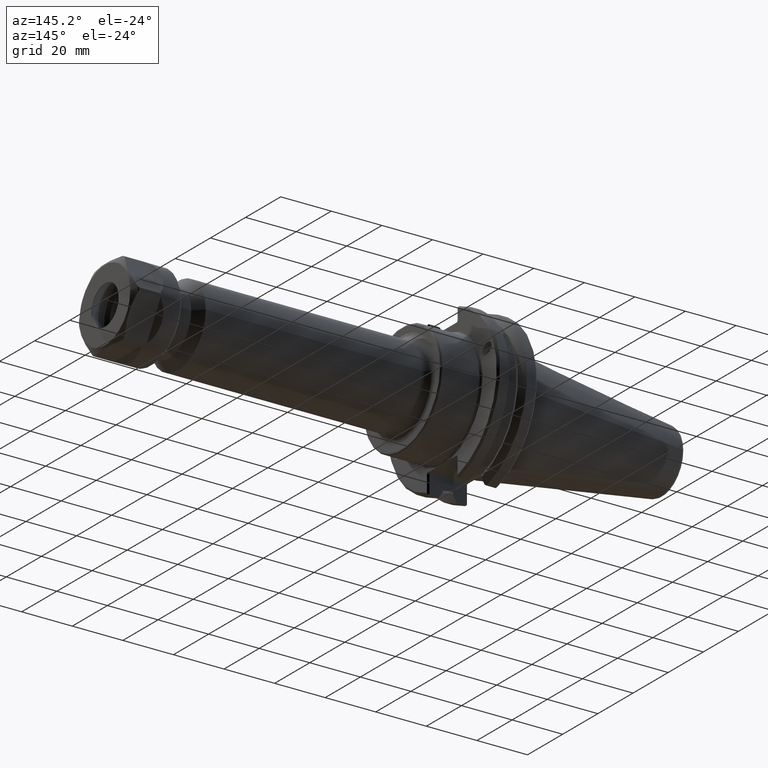
[diagram: clean part render]
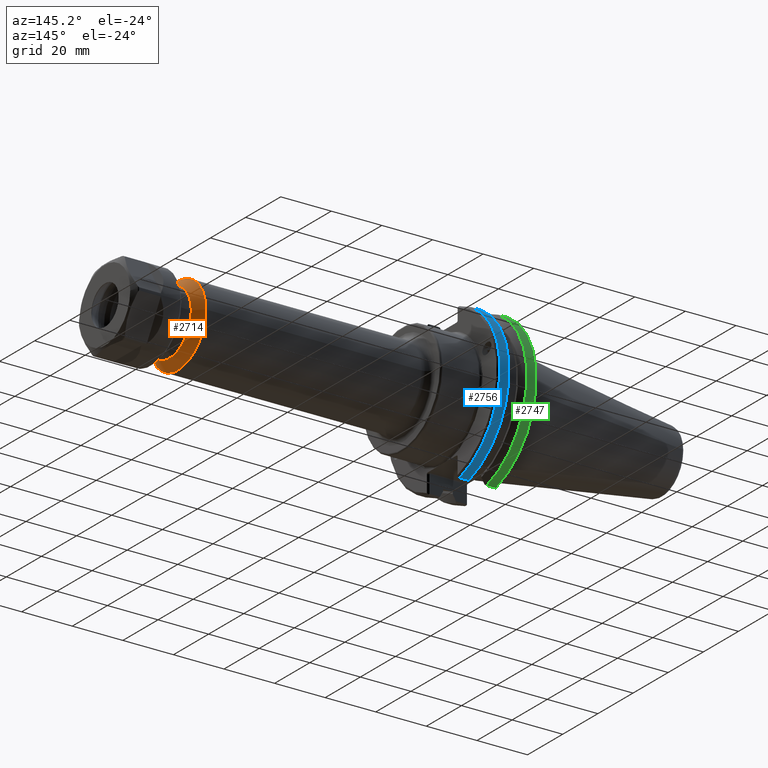
[diagram: same view with three faces highlighted in distinct colors, each labeled with its STEP entity id]
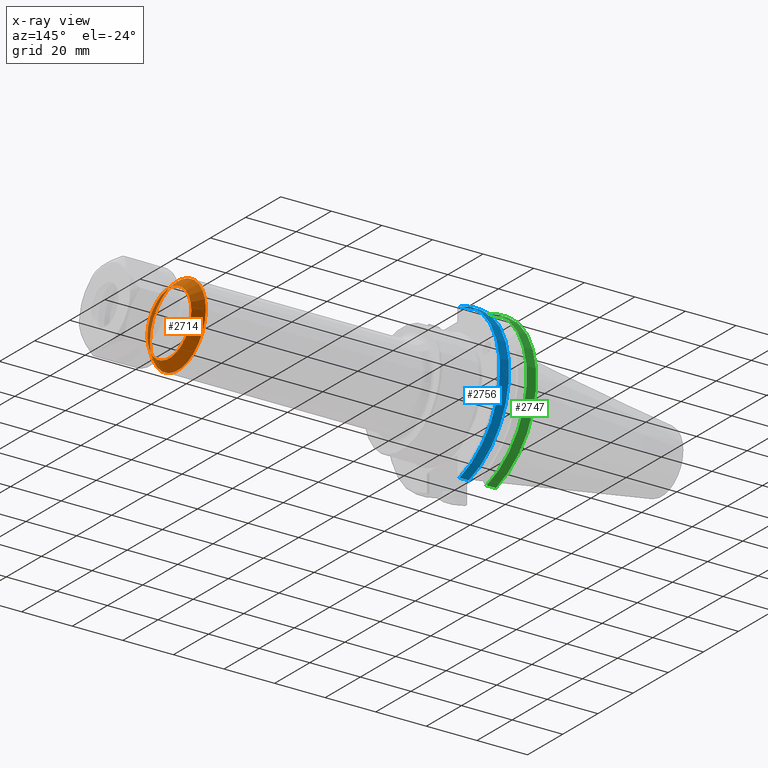
[diagram: x-ray of the same camera — body ghosted, the three highlighted faces saturated]
A machine part, auxiliary view with three faces highlighted in distinct colors.
The next image is the same camera in x-ray (body ghosted, the three faces saturated) — at least one of them is partly hidden behind the body in this view.
Their STEP definitions:

[orange] entity #2714 — the highlighted conical surface has half-angle 45 deg.
#503=CONICAL_SURFACE('',#2941,0.558562992125984,45.0000000000001);
#624=CIRCLE('',#2904,0.492125984251969);
#634=CIRCLE('',#2926,0.625);
#760=FACE_BOUND('',#1088,.T.);
#875=FACE_OUTER_BOUND('',#1087,.T.);
#1087=EDGE_LOOP('',(#2015));
#1088=EDGE_LOOP('',(#2016));
#1328=VERTEX_POINT('',#4192);
#1349=VERTEX_POINT('',#4253);
#1590=EDGE_CURVE('',#1328,#1328,#624,.T.);
#1612=EDGE_CURVE('',#1349,#1349,#634,.T.);
#2015=ORIENTED_EDGE('',*,*,#1590,.F.);
#2016=ORIENTED_EDGE('',*,*,#1612,.T.);
#2714=ADVANCED_FACE('',(#875,#760),#503,.T.);
#2904=AXIS2_PLACEMENT_3D('',#4193,#3283,#3284);
#2926=AXIS2_PLACEMENT_3D('',#4254,#3334,#3335);
#2941=AXIS2_PLACEMENT_3D('',#4276,#3364,#3365);
#3283=DIRECTION('center_axis',(1.,0.,0.));
#3284=DIRECTION('ref_axis',(0.,1.,0.));
#3334=DIRECTION('center_axis',(1.,0.,0.));
#3335=DIRECTION('ref_axis',(0.,1.,0.));
#3364=DIRECTION('center_axis',(-1.,0.,0.));
#3365=DIRECTION('ref_axis',(0.,1.,0.));
#4192=CARTESIAN_POINT('',(4.998,0.492125984251969,0.));
#4193=CARTESIAN_POINT('Origin',(4.998,0.,0.));
#4253=CARTESIAN_POINT('',(4.86512598425197,0.625,0.));
#4254=CARTESIAN_POINT('Origin',(4.86512598425197,0.,0.));
#4276=CARTESIAN_POINT('Origin',(4.93156299212598,0.,0.));

[blue] entity #2756 — the highlighted cylindrical surface (partial cylindrical patch) has radius 31.75 mm, axis along (1, 0, 0).
#178=LINE('',#4586,#324);
#180=LINE('',#4606,#326);
#324=VECTOR('',#3567,0.142826127773145);
#326=VECTOR('',#3579,0.142826127773145);
#655=CIRCLE('',#3005,1.25);
#657=CIRCLE('',#3011,1.25);
#917=FACE_OUTER_BOUND('',#1138,.T.);
#1138=EDGE_LOOP('',(#2233,#2234,#2235,#2236));
#1441=VERTEX_POINT('',#4572);
#1442=VERTEX_POINT('',#4576);
#1443=VERTEX_POINT('',#4582);
#1447=VERTEX_POINT('',#4604);
#1740=EDGE_CURVE('',#1441,#1442,#655,.T.);
#1743=EDGE_CURVE('',#1443,#1441,#178,.T.);
#1749=EDGE_CURVE('',#1443,#1447,#657,.T.);
#1750=EDGE_CURVE('',#1442,#1447,#180,.T.);
#2233=ORIENTED_EDGE('',*,*,#1743,.F.);
#2234=ORIENTED_EDGE('',*,*,#1749,.T.);
#2235=ORIENTED_EDGE('',*,*,#1750,.F.);
#2236=ORIENTED_EDGE('',*,*,#1740,.F.);
#2660=CYLINDRICAL_SURFACE('',#3010,1.25);
#2756=ADVANCED_FACE('',(#917),#2660,.T.);
#3005=AXIS2_PLACEMENT_3D('',#4577,#3563,#3564);
#3010=AXIS2_PLACEMENT_3D('',#4603,#3575,#3576);
#3011=AXIS2_PLACEMENT_3D('',#4605,#3577,#3578);
#3563=DIRECTION('center_axis',(1.,0.,0.));
#3564=DIRECTION('ref_axis',(-1.62451355720802E-13,1.,0.));
#3567=DIRECTION('',(1.,0.,0.));
#3575=DIRECTION('center_axis',(1.,0.,0.));
#3576=DIRECTION('ref_axis',(-1.62451355720802E-13,1.,0.));
#3577=DIRECTION('center_axis',(1.,0.,0.));
#3578=DIRECTION('ref_axis',(-1.62451355720802E-13,1.,0.));
#3579=DIRECTION('',(-1.,0.,0.));
#4572=CARTESIAN_POINT('',(0.719999999999797,0.344098106798386,-1.20170565984261));
#4576=CARTESIAN_POINT('',(0.719999999999797,0.344098106798413,1.2017056598426));
#4577=CARTESIAN_POINT('Origin',(0.719999999999797,0.,0.));
#4582=CARTESIAN_POINT('',(0.577173872226652,0.344098106798386,-1.20170565984261));
#4586=CARTESIAN_POINT('',(0.4375,0.344098106798386,-1.20170565984261));
#4603=CARTESIAN_POINT('Origin',(0.4375,0.,0.));
#4604=CARTESIAN_POINT('',(0.577173872226652,0.344098106798413,1.2017056598426));
#4605=CARTESIAN_POINT('Origin',(0.577173872226652,0.,0.));
#4606=CARTESIAN_POINT('',(0.4375,0.344098106798413,1.2017056598426));

[green] entity #2747 — the highlighted cylindrical surface (partial cylindrical patch) has radius 31.75 mm, axis along (1, 0, 0).
#174=LINE('',#4537,#320);
#175=LINE('',#4545,#321);
#320=VECTOR('',#3539,0.144526127773564);
#321=VECTOR('',#3544,0.144526127773564);
#651=CIRCLE('',#2996,1.25);
#652=CIRCLE('',#2997,1.25);
#908=FACE_OUTER_BOUND('',#1129,.T.);
#1129=EDGE_LOOP('',(#2186,#2187,#2188,#2189));
#1433=VERTEX_POINT('',#4532);
#1434=VERTEX_POINT('',#4536);
#1435=VERTEX_POINT('',#4542);
#1436=VERTEX_POINT('',#4544);
#1726=EDGE_CURVE('',#1433,#1434,#174,.T.);
#1728=EDGE_CURVE('',#1435,#1433,#651,.T.);
#1729=EDGE_CURVE('',#1436,#1435,#175,.T.);
#1730=EDGE_CURVE('',#1436,#1434,#652,.T.);
#2186=ORIENTED_EDGE('',*,*,#1726,.F.);
#2187=ORIENTED_EDGE('',*,*,#1728,.F.);
#2188=ORIENTED_EDGE('',*,*,#1729,.F.);
#2189=ORIENTED_EDGE('',*,*,#1730,.T.);
#2658=CYLINDRICAL_SURFACE('',#2995,1.25);
#2747=ADVANCED_FACE('',(#908),#2658,.T.);
#2995=AXIS2_PLACEMENT_3D('',#4541,#3540,#3541);
#2996=AXIS2_PLACEMENT_3D('',#4543,#3542,#3543);
#2997=AXIS2_PLACEMENT_3D('',#4546,#3545,#3546);
#3539=DIRECTION('',(1.,0.,0.));
#3540=DIRECTION('center_axis',(1.,0.,0.));
#3541=DIRECTION('ref_axis',(-1.62451355720802E-13,1.,0.));
#3542=DIRECTION('center_axis',(-1.,0.,0.));
#3543=DIRECTION('ref_axis',(-1.62451355720802E-13,1.,0.));
#3544=DIRECTION('',(-1.,0.,0.));
#3545=DIRECTION('center_axis',(-1.,0.,0.));
#3546=DIRECTION('ref_axis',(-1.62451355720802E-13,1.,0.));
#4532=CARTESIAN_POINT('',(0.154999999999797,0.344098106798456,-1.20170565984259));
#4536=CARTESIAN_POINT('',(0.299526127773361,0.344098106798456,-1.20170565984259));
#4537=CARTESIAN_POINT('',(0.4375,0.344098106798456,-1.20170565984259));
#4541=CARTESIAN_POINT('Origin',(0.4375,0.,0.));
#4542=CARTESIAN_POINT('',(0.154999999999797,0.344098106798413,1.2017056598426));
#4543=CARTESIAN_POINT('Origin',(0.154999999999797,0.,0.));
#4544=CARTESIAN_POINT('',(0.299526127773361,0.344098106798413,1.2017056598426));
#4545=CARTESIAN_POINT('',(0.4375,0.344098106798413,1.2017056598426));
#4546=CARTESIAN_POINT('Origin',(0.299526127773361,0.,0.));